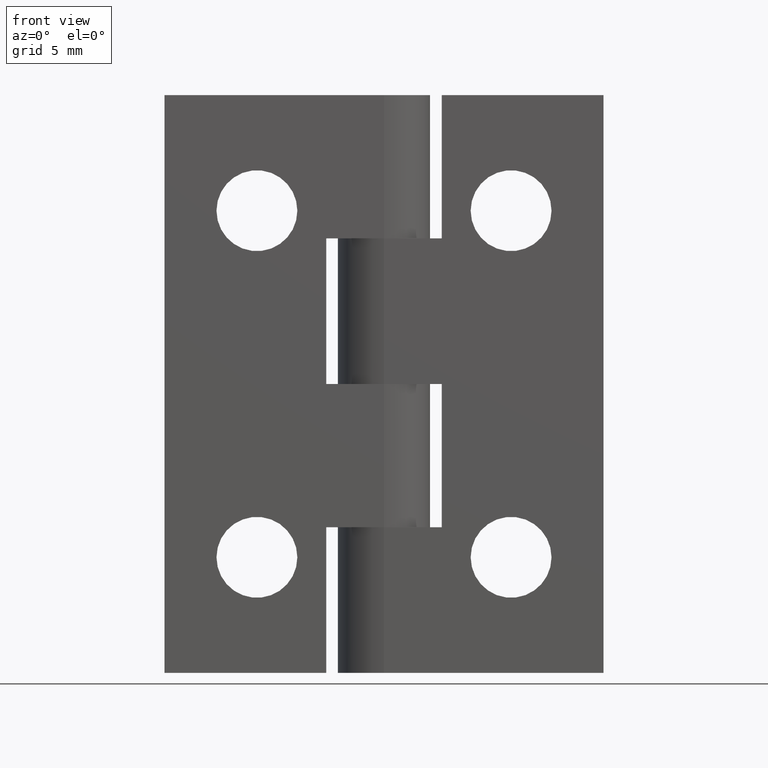
[diagram: clean part render]
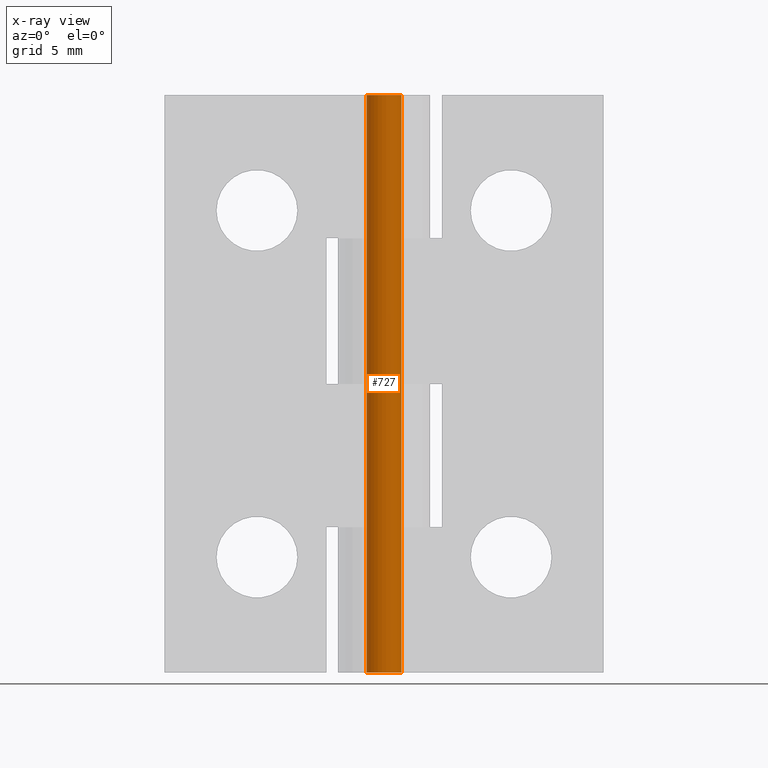
[diagram: x-ray — body ghosted, one internal face saturated and labeled with its STEP entity id]
A machine part, front view, then the same camera in x-ray: the body is ghosted and one INTERNAL B-rep face — a face not visible from any outside direction — is saturated and labeled: STEP entity #727.
In plain terms, the highlighted cylindrical surface (bore or boss wall) has radius 0.75 mm, axis along (0, 0, 1).
Its self-contained STEP definition (entity closure, byte-faithful):
#53=CYLINDRICAL_SURFACE('',#807,0.75);
#82=FACE_BOUND('',#226,.T.);
#115=CIRCLE('',#806,0.75);
#116=CIRCLE('',#808,0.75);
#156=FACE_OUTER_BOUND('',#225,.T.);
#225=EDGE_LOOP('',(#663));
#226=EDGE_LOOP('',(#664));
#400=VERTEX_POINT('',#1224);
#401=VERTEX_POINT('',#1227);
#488=EDGE_CURVE('',#400,#400,#115,.T.);
#489=EDGE_CURVE('',#401,#401,#116,.T.);
#663=ORIENTED_EDGE('',*,*,#488,.F.);
#664=ORIENTED_EDGE('',*,*,#489,.F.);
#727=ADVANCED_FACE('',(#156,#82),#53,.T.);
#806=AXIS2_PLACEMENT_3D('',#1225,#1016,#1017);
#807=AXIS2_PLACEMENT_3D('',#1226,#1018,#1019);
#808=AXIS2_PLACEMENT_3D('',#1228,#1020,#1021);
#1016=DIRECTION('center_axis',(0.,0.,-1.));
#1017=DIRECTION('ref_axis',(-1.,0.,0.));
#1018=DIRECTION('center_axis',(0.,0.,1.));
#1019=DIRECTION('ref_axis',(-1.,0.,0.));
#1020=DIRECTION('center_axis',(0.,0.,1.));
#1021=DIRECTION('ref_axis',(-1.,0.,0.));
#1224=CARTESIAN_POINT('',(0.75,9.18485099360515E-17,-12.5));
#1225=CARTESIAN_POINT('Origin',(0.,0.,-12.5));
#1226=CARTESIAN_POINT('Origin',(0.,0.,0.));
#1227=CARTESIAN_POINT('',(0.75,9.18485099360515E-17,12.5));
#1228=CARTESIAN_POINT('Origin',(0.,0.,12.5));